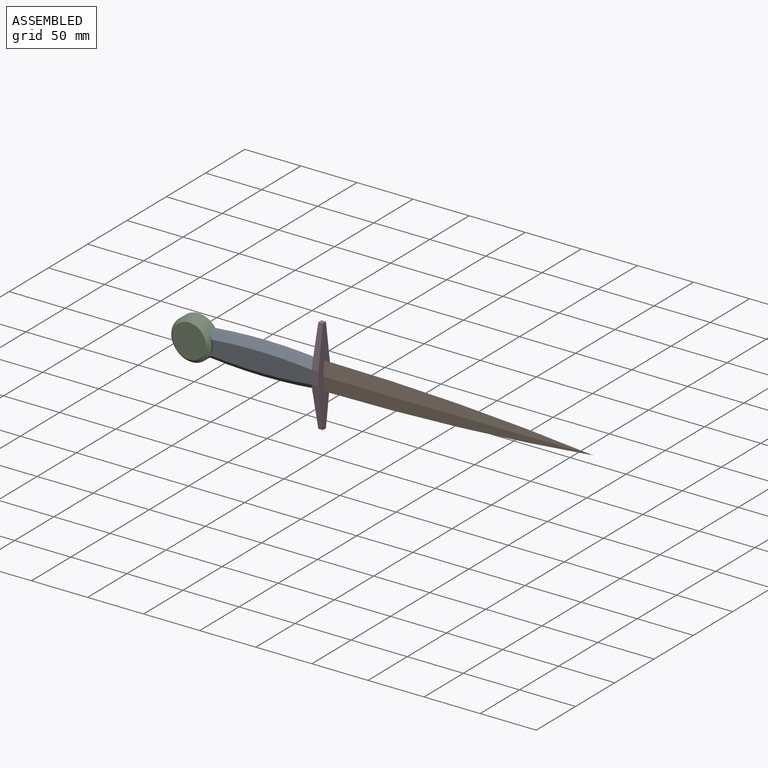
[diagram: assembled view]
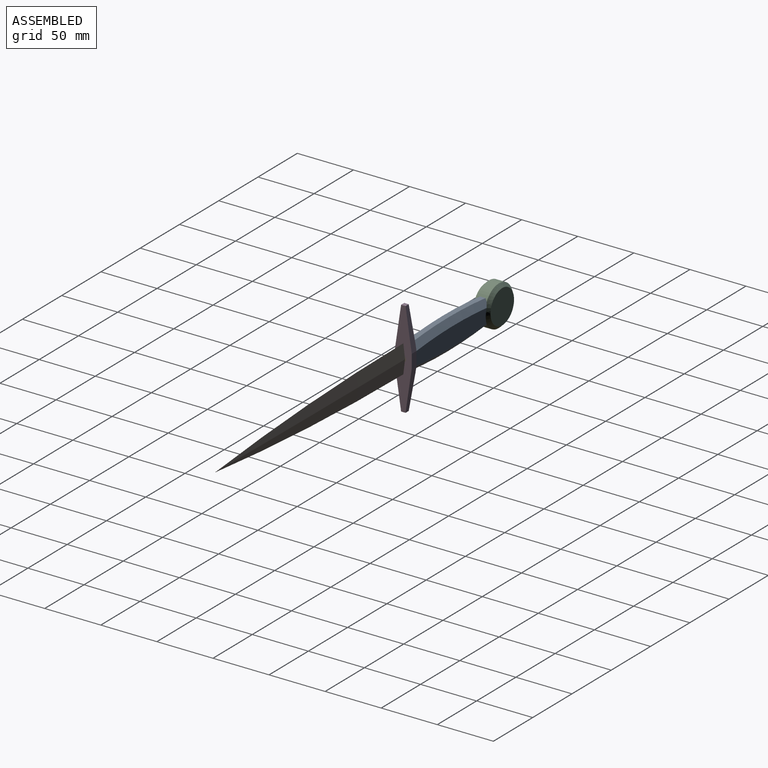
[diagram: assembled view, second angle]
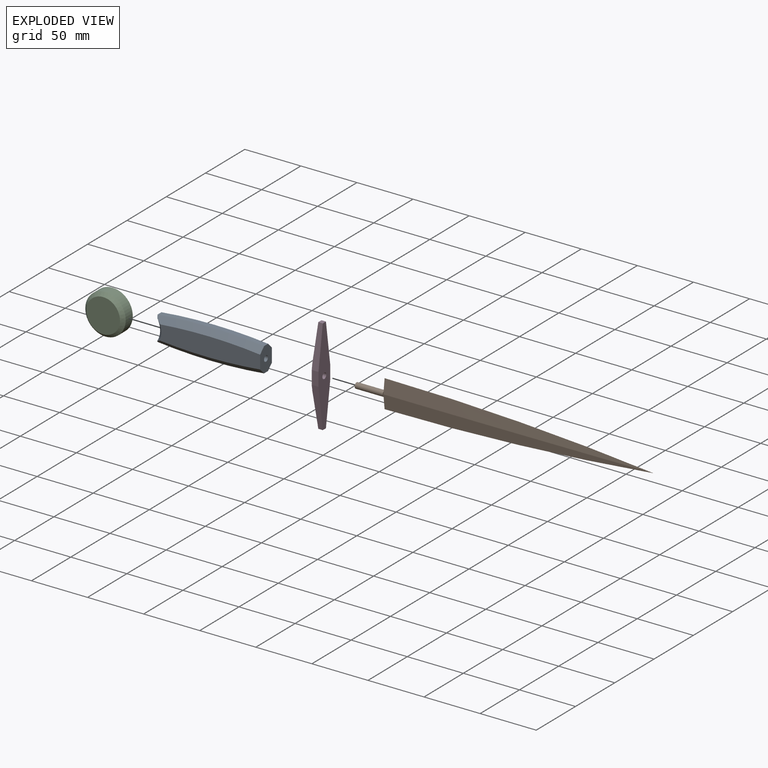
[diagram: exploded view]
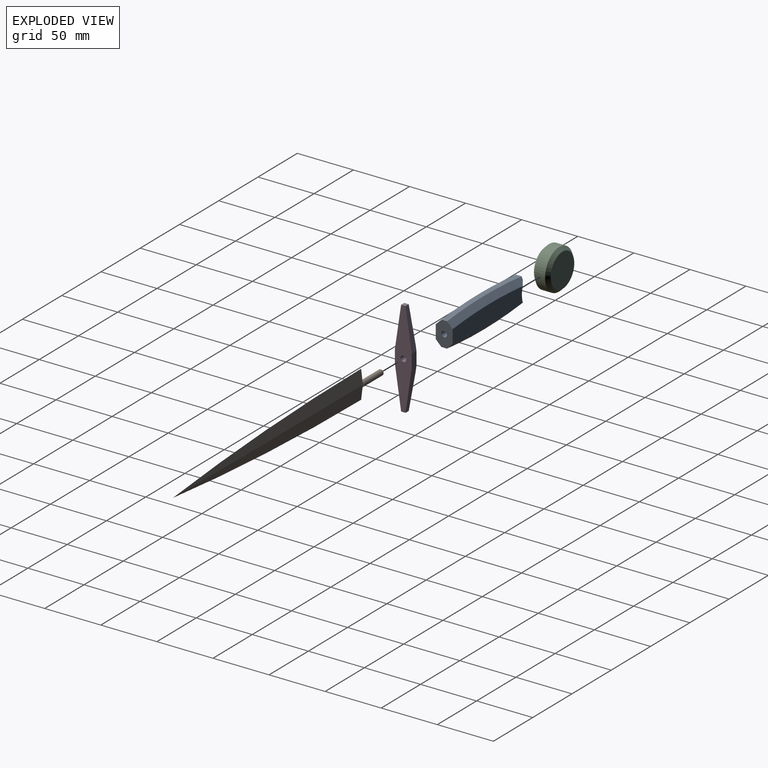
[diagram: exploded view, second angle]
ASSEMBLY  parts=4 mates=3
PART A: 13 faces, bbox 95.5x15x27 mm
  f0: cylinder r=18mm len=22mm, axis (0,1,0), area 184.3mm2, adj f1,f2,f6,f7,f8,f9,f10,f11
  f1: cylinder r=452.5mm len=95mm, axis (0,1,0), area 475.9mm2, adj f0,f3,f8,f9
  f2: cylinder r=452.5mm len=95mm, axis (0,1,0), area 475.9mm2, adj f0,f3,f6,f7
  f3: plane 22x15mm, normal (1,0,0), area 260.1mm2, adj f1,f2,f4,f5,f6,f7,f8,f9
  f4: plane 89.29x17mm, normal (0,-1,0), area 1374.4mm2, adj f3,f6,f9,f11
  f5: plane 89.29x17mm, normal (0,1,0), area 1374.4mm2, adj f3,f7,f8,f10
  f6: cone r=447.5mm half-angle=45deg, axis (0,1,0), area 656mm2, adj f0,f2,f3,f4,f11
  f7: cone r=452.5mm half-angle=45deg, axis (0,-1,0), area 656mm2, adj f0,f2,f3,f5,f10
  f8: cone r=452.5mm half-angle=45deg, axis (0,-1,0), area 656mm2, adj f0,f1,f3,f5,f10
  f9: cone r=447.5mm half-angle=45deg, axis (0,1,0), area 656mm2, adj f0,f1,f3,f4,f11
  f10: cone r=21mm half-angle=45deg, axis (0,1,0), area 68.6mm2, adj f0,f5,f7,f8
  f11: cone r=18mm half-angle=45deg, axis (0,-1,0), area 68.6mm2, adj f0,f4,f6,f9
  f12: cylinder r=2.5mm len=91.42mm, axis (1,0,0), area 1434.7mm2, adj f0,f3
PART B: 10 faces, bbox 265x5x25 mm
  f0: plane 10.33x2.48mm, normal (-1,0,0), area 12.3mm2, adj f3,f5,f8
  f1: plane 10.33x2.48mm, normal (-1,0,0), area 12.3mm2, adj f2,f4,f8
  f2: cone r=2310.25mm half-angle=83.2deg, axis (0,1,0), area 2015.4mm2, adj f1,f3,f4,f7
  f3: cone r=2297.75mm half-angle=83.2deg, axis (0,1,0), area 2015.4mm2, adj f0,f2,f5,f7
  f4: cone r=2297.75mm half-angle=83.2deg, axis (0,-1,0), area 2015.4mm2, adj f1,f2,f5,f6
  f5: cone r=2310.25mm half-angle=83.2deg, axis (0,-1,0), area 2015.4mm2, adj f0,f3,f4,f6
  f6: plane 4.34x1.26mm, normal (1,0,0), area 3.3mm2, adj f4,f5,f8
  f7: plane 4.34x1.26mm, normal (1,0,0), area 3.3mm2, adj f2,f3,f8
  f8: cylinder r=2.5mm len=25mm, axis (1,0,0), area 392.7mm2, adj f0,f1,f6,f7,f9
  f9: plane 5x5mm, normal (-1,0,0), area 19.6mm2, adj f8
PART C: 5 faces, bbox 36x15x36 mm
  f0: cylinder r=18mm len=36mm, axis (0,1,0), area 1017.9mm2, adj f3,f4
  f1: plane 30x30mm, normal (0,-1,0), area 706.9mm2, adj f4
  f2: plane 30x30mm, normal (0,1,0), area 706.9mm2, adj f3
  f3: cone r=18mm half-angle=45deg, axis (0,-1,0), area 439.8mm2, adj f0,f2
  f4: cone r=15mm half-angle=45deg, axis (0,1,0), area 439.8mm2, adj f0,f1
PART D: 13 faces, bbox 86x15x6 mm
  f0: plane 32x13.51mm, normal (-0.06,0,-1), area 280.8mm2, adj f1,f5,f10,f11
  f1: plane 22x15mm, normal (0,0,-1), area 302.9mm2, adj f0,f2,f6,f7,f8,f9,f10,f11
  f2: plane 32x13.51mm, normal (0.06,0,-1), area 280.8mm2, adj f1,f3,f8,f9
  f3: plane 4x4mm, normal (1,0,0), area 16mm2, adj f2,f4,f8,f9
  f4: plane 86x15mm, normal (0,0,1), area 863.4mm2, adj f3,f5,f6,f7,f8,f9,f10,f11
  f5: plane 4x4mm, normal (-1,0,0), area 16mm2, adj f0,f4,f10,f11
  f6: plane 12x6mm, normal (0,-1,0), area 72mm2, adj f1,f4,f8,f11
  f7: plane 12x6mm, normal (0,1,0), area 72mm2, adj f1,f4,f9,f10
  f8: plane 37x6mm, normal (0.15,-0.99,0), area 192.1mm2, adj f1,f2,f3,f4,f6
  f9: plane 37x6mm, normal (0.15,0.99,0), area 192.1mm2, adj f1,f2,f3,f4,f7
  f10: plane 37x6mm, normal (-0.15,0.99,0), area 192.1mm2, adj f0,f1,f4,f5,f7
  f11: plane 37x6mm, normal (-0.15,-0.99,0), area 192.1mm2, adj f0,f1,f4,f5,f6
  f12: cylinder r=2.5mm len=6mm, axis (0,0,-1), area 94.2mm2, adj f1,f4
PLACE A t=(-23.92,-15.39,10.16)mm
PLACE B t=(-17.92,-21.39,-2.34)mm
PLACE C t=(-133.16,-15.39,10.16)mm
PLACE D rot(axis=(0.71,0,0.71),180deg) t=(-23.92,-30.39,-0.84)mm
MATE fastened D.f12 <-> A.f12  axis (-1,0,0) through (-23.92,-22.89,10.16)mm
MATE fastened B.f8 <-> D.f12  axis (1,0,0) through (-17.92,-22.89,10.16)mm
MATE fastened C.f0 <-> A.f0  axis (0,1,0) through (-133.16,-22.89,10.16)mm
